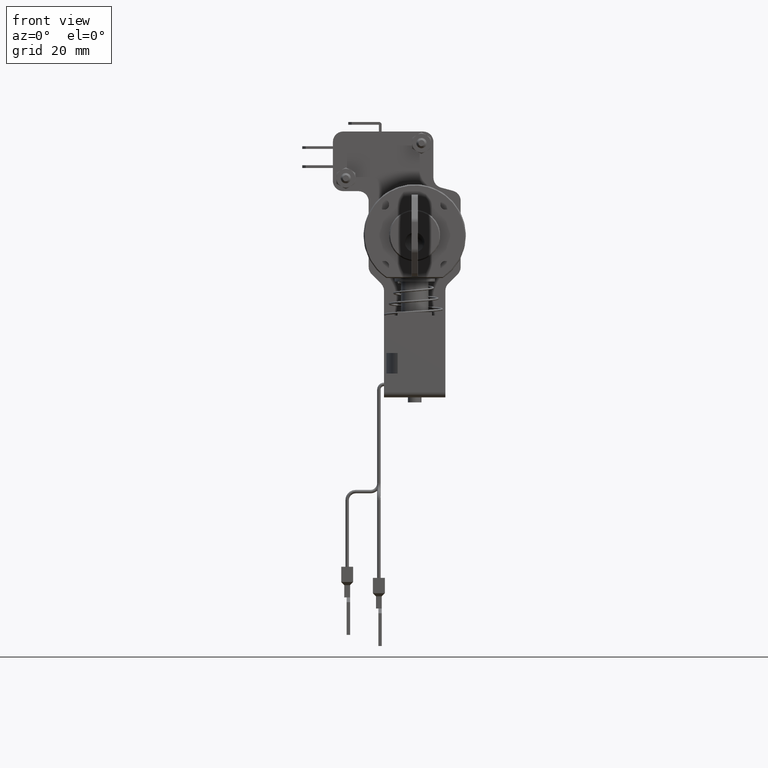
[diagram: clean part render]
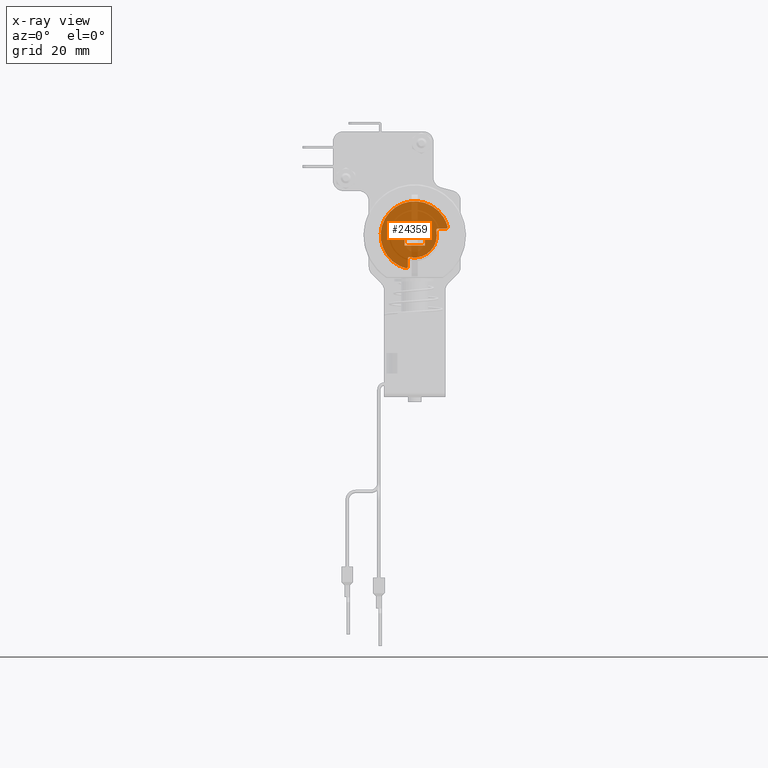
[diagram: x-ray — body ghosted, one internal face saturated and labeled with its STEP entity id]
A machine part, front view, then the same camera in x-ray: the body is ghosted and one INTERNAL B-rep face — a face not visible from any outside direction — is saturated and labeled: STEP entity #24359.
In plain terms, the highlighted face is a freeform B-spline surface patch.
Its self-contained STEP definition (entity closure, byte-faithful):
#24204=CARTESIAN_POINT('',(30.500000000000000,-10.646666672671440,10.968855094222990));
#24205=CARTESIAN_POINT('',(30.500000000000000,10.968855039149719,10.968855094222990));
#24206=CARTESIAN_POINT('',(30.500000000000000,-10.646666672671440,-10.646667346798530));
#24207=CARTESIAN_POINT('',(30.500000000000000,10.968855039149719,-10.646667346798530));
#24208=B_SPLINE_SURFACE_WITH_KNOTS('',1,1,((#24204,#24206),(#24205,#24207)),.UNSPECIFIED.,.F.,.F.,.U.,(2,2),(2,2),(0.0,21.615521711821160),(0.0,21.615522441021518),.UNSPECIFIED.);
#24209=CARTESIAN_POINT('',(30.500000000000000,-9.647527792194982,2.631578898461045));
#24210=VERTEX_POINT('',#24209);
#24211=CARTESIAN_POINT('',(30.500000000000000,-9.165151000000000,2.0));
#24212=VERTEX_POINT('',#24211);
#24213=CARTESIAN_POINT('',(30.500000000000000,-9.647527792194982,2.631578898461045));
#24214=CARTESIAN_POINT('',(30.500000000000007,-9.712598807194073,2.393022899500708));
#24215=CARTESIAN_POINT('',(30.500000000000000,-9.562510660593986,2.196511449750354));
#24216=CARTESIAN_POINT('',(30.500000000000007,-9.412422513993899,2.000000000000000));
#24217=CARTESIAN_POINT('',(30.500000000000000,-9.165151000000000,2.0));
#24225=(BOUNDED_CURVE()B_SPLINE_CURVE(2,(#24213,#24214,#24215,#24216,#24217),.UNSPECIFIED.,.F.,.U.)B_SPLINE_CURVE_WITH_KNOTS((3,2,3),(0.0,0.500000000000000,1.0),.UNSPECIFIED.)CURVE()GEOMETRIC_REPRESENTATION_ITEM()RATIONAL_B_SPLINE_CURVE((1.0,0.896375228489524,1.0,0.896375228489524,1.0))REPRESENTATION_ITEM(''));
#24226=EDGE_CURVE('',#24210,#24212,#24225,.T.);
#24227=ORIENTED_EDGE('',*,*,#24226,.F.);
#24228=CARTESIAN_POINT('',(30.500000000000000,2.631578944923050,-9.647528389609670));
#24229=VERTEX_POINT('',#24228);
#24230=CARTESIAN_POINT('',(30.500000000000000,2.631578944923050,-9.647528389609670));
#24231=CARTESIAN_POINT('',(30.499999999999996,10.702215867329622,-7.446081218348587));
#24232=CARTESIAN_POINT('',(30.500000000000000,9.960630033237456,0.886481438591915));
#24233=CARTESIAN_POINT('',(30.499999999999996,9.219044199145287,9.219044095532416));
#24234=CARTESIAN_POINT('',(30.500000000000000,0.886481550539475,9.960630023274288));
#24235=CARTESIAN_POINT('',(30.499999999999996,-7.446081098066332,10.702215951016155));
#24236=CARTESIAN_POINT('',(30.500000000000000,-9.647527792194980,2.631578898461048));
#24244=(BOUNDED_CURVE()B_SPLINE_CURVE(2,(#24230,#24231,#24232,#24233,#24234,#24235,#24236),.UNSPECIFIED.,.F.,.U.)B_SPLINE_CURVE_WITH_KNOTS((3,2,2,3),(0.0,0.333333333333333,0.666666666666667,1.0),.UNSPECIFIED.)CURVE()GEOMETRIC_REPRESENTATION_ITEM()RATIONAL_B_SPLINE_CURVE((1.0,0.767006611407387,1.0,0.767006611407387,1.0,0.767006611407387,1.0))REPRESENTATION_ITEM(''));
#24245=EDGE_CURVE('',#24229,#24210,#24244,.T.);
#24246=ORIENTED_EDGE('',*,*,#24245,.F.);
#24247=CARTESIAN_POINT('',(30.500000000000000,2.0,-9.165151999999999));
#24248=VERTEX_POINT('',#24247);
#24249=CARTESIAN_POINT('',(30.500000000000000,2.0,-9.165151999999999));
#24250=CARTESIAN_POINT('',(30.500000000000000,2.000000000000000,-9.412423560904257));
#24251=CARTESIAN_POINT('',(30.500000000000000,2.196511509659374,-9.562511706350263));
#24252=CARTESIAN_POINT('',(30.500000000000000,2.393023019318747,-9.712599851796270));
#24253=CARTESIAN_POINT('',(30.500000000000000,2.631578944923050,-9.647528389609670));
#24261=(BOUNDED_CURVE()B_SPLINE_CURVE(2,(#24249,#24250,#24251,#24252,#24253),.UNSPECIFIED.,.F.,.U.)B_SPLINE_CURVE_WITH_KNOTS((3,2,3),(0.0,0.500000000000000,1.0),.UNSPECIFIED.)CURVE()GEOMETRIC_REPRESENTATION_ITEM()RATIONAL_B_SPLINE_CURVE((1.0,0.896375195072145,1.0,0.896375195072145,1.0))REPRESENTATION_ITEM(''));
#24262=EDGE_CURVE('',#24248,#24229,#24261,.T.);
#24263=ORIENTED_EDGE('',*,*,#24262,.F.);
#24264=CARTESIAN_POINT('',(30.500000000000000,2.0,-6.837397165588670));
#24265=VERTEX_POINT('',#24264);
#24266=CARTESIAN_POINT('',(30.500000000000000,2.0,-6.837397165588670));
#24267=CARTESIAN_POINT('',(30.500000000000000,2.0,-9.165151999999999));
#24268=QUASI_UNIFORM_CURVE('',1,(#24266,#24267),.UNSPECIFIED.,.F.,.U.);
#24269=EDGE_CURVE('',#24265,#24248,#24268,.T.);
#24270=ORIENTED_EDGE('',*,*,#24269,.F.);
#24271=CARTESIAN_POINT('',(30.500000000000000,1.392857142857142,-6.349011653760910));
#24272=VERTEX_POINT('',#24271);
#24273=CARTESIAN_POINT('',(30.500000000000000,2.0,-6.837397165588670));
#24274=CARTESIAN_POINT('',(30.499999999999996,2.000000000000000,-6.597908050938844));
#24275=CARTESIAN_POINT('',(30.500000000000000,1.813391585264004,-6.447800304351679));
#24276=CARTESIAN_POINT('',(30.499999999999996,1.626783170528007,-6.297692557764516));
#24277=CARTESIAN_POINT('',(30.500000000000000,1.392857142857142,-6.349011653760909));
#24285=(BOUNDED_CURVE()B_SPLINE_CURVE(2,(#24273,#24274,#24275,#24276,#24277),.UNSPECIFIED.,.F.,.U.)B_SPLINE_CURVE_WITH_KNOTS((3,2,3),(0.0,0.500000000000000,1.0),.UNSPECIFIED.)CURVE()GEOMETRIC_REPRESENTATION_ITEM()RATIONAL_B_SPLINE_CURVE((1.0,0.901882245786003,1.0,0.901882245786003,1.0))REPRESENTATION_ITEM(''));
#24286=EDGE_CURVE('',#24265,#24272,#24285,.T.);
#24287=ORIENTED_EDGE('',*,*,#24286,.T.);
#24288=CARTESIAN_POINT('',(30.500000000000000,-6.349011653760910,1.392857142857144));
#24289=VERTEX_POINT('',#24288);
#24290=CARTESIAN_POINT('',(30.500000000000000,-6.349011653760909,1.392857142857144));
#24291=CARTESIAN_POINT('',(30.499999999999996,-7.111162039616178,-2.081226115808939));
#24292=CARTESIAN_POINT('',(30.500000000000000,-4.596194077712559,-4.596194077712558));
#24293=CARTESIAN_POINT('',(30.499999999999996,-2.081226115808942,-7.111162039616177));
#24294=CARTESIAN_POINT('',(30.500000000000000,1.392857142857140,-6.349011653760910));
#24302=(BOUNDED_CURVE()B_SPLINE_CURVE(2,(#24290,#24291,#24292,#24293,#24294),.UNSPECIFIED.,.F.,.U.)B_SPLINE_CURVE_WITH_KNOTS((3,2,3),(0.0,0.500000000000000,1.0),.UNSPECIFIED.)CURVE()GEOMETRIC_REPRESENTATION_ITEM()RATIONAL_B_SPLINE_CURVE((1.0,0.877256670767033,1.0,0.877256670767033,1.0))REPRESENTATION_ITEM(''));
#24303=EDGE_CURVE('',#24289,#24272,#24302,.T.);
#24304=ORIENTED_EDGE('',*,*,#24303,.F.);
#24305=CARTESIAN_POINT('',(30.500000000000000,-6.837397165588670,2.0));
#24306=VERTEX_POINT('',#24305);
#24307=CARTESIAN_POINT('',(30.500000000000000,-6.349011653760908,1.392857142857143));
#24308=CARTESIAN_POINT('',(30.499999999999996,-6.297692557764517,1.626783170528009));
#24309=CARTESIAN_POINT('',(30.500000000000000,-6.447800304351680,1.813391585264005));
#24310=CARTESIAN_POINT('',(30.499999999999996,-6.597908050938845,2.000000000000000));
#24311=CARTESIAN_POINT('',(30.500000000000000,-6.837397165588670,2.0));
#24319=(BOUNDED_CURVE()B_SPLINE_CURVE(2,(#24307,#24308,#24309,#24310,#24311),.UNSPECIFIED.,.F.,.U.)B_SPLINE_CURVE_WITH_KNOTS((3,2,3),(0.0,0.500000000000000,1.0),.UNSPECIFIED.)CURVE()GEOMETRIC_REPRESENTATION_ITEM()RATIONAL_B_SPLINE_CURVE((1.0,0.901882245786003,1.0,0.901882245786003,1.0))REPRESENTATION_ITEM(''));
#24320=EDGE_CURVE('',#24289,#24306,#24319,.T.);
#24321=ORIENTED_EDGE('',*,*,#24320,.T.);
#24322=CARTESIAN_POINT('',(30.500000000000000,-9.165151000000000,2.0));
#24323=CARTESIAN_POINT('',(30.500000000000000,-6.837397165588670,2.0));
#24324=QUASI_UNIFORM_CURVE('',1,(#24322,#24323),.UNSPECIFIED.,.F.,.U.);
#24325=EDGE_CURVE('',#24212,#24306,#24324,.T.);
#24326=ORIENTED_EDGE('',*,*,#24325,.F.);
#24327=EDGE_LOOP('',(#24227,#24246,#24263,#24270,#24287,#24304,#24321,#24326));
#24328=FACE_OUTER_BOUND('',#24327,.T.);
#24329=CARTESIAN_POINT('',(30.500000000000000,3.0,-3.0));
#24330=VERTEX_POINT('',#24329);
#24331=CARTESIAN_POINT('',(30.500000000000000,3.0,3.0));
#24332=VERTEX_POINT('',#24331);
#24333=CARTESIAN_POINT('',(30.500000000000000,3.0,-3.0));
#24334=CARTESIAN_POINT('',(30.500000000000000,3.0,3.0));
#24335=QUASI_UNIFORM_CURVE('',1,(#24333,#24334),.UNSPECIFIED.,.F.,.U.);
#24336=EDGE_CURVE('',#24330,#24332,#24335,.T.);
#24337=ORIENTED_EDGE('',*,*,#24336,.T.);
#24338=CARTESIAN_POINT('',(30.500000000000000,-3.0,3.0));
#24339=VERTEX_POINT('',#24338);
#24340=CARTESIAN_POINT('',(30.500000000000000,3.0,3.0));
#24341=CARTESIAN_POINT('',(30.500000000000000,-3.0,3.0));
#24342=QUASI_UNIFORM_CURVE('',1,(#24340,#24341),.UNSPECIFIED.,.F.,.U.);
#24343=EDGE_CURVE('',#24332,#24339,#24342,.T.);
#24344=ORIENTED_EDGE('',*,*,#24343,.T.);
#24345=CARTESIAN_POINT('',(30.500000000000000,-3.0,-3.0));
#24346=VERTEX_POINT('',#24345);
#24347=CARTESIAN_POINT('',(30.500000000000000,-3.0,3.0));
#24348=CARTESIAN_POINT('',(30.500000000000000,-3.0,-3.0));
#24349=QUASI_UNIFORM_CURVE('',1,(#24347,#24348),.UNSPECIFIED.,.F.,.U.);
#24350=EDGE_CURVE('',#24339,#24346,#24349,.T.);
#24351=ORIENTED_EDGE('',*,*,#24350,.T.);
#24352=CARTESIAN_POINT('',(30.500000000000000,-3.0,-3.0));
#24353=CARTESIAN_POINT('',(30.500000000000000,3.0,-3.0));
#24354=QUASI_UNIFORM_CURVE('',1,(#24352,#24353),.UNSPECIFIED.,.F.,.U.);
#24355=EDGE_CURVE('',#24346,#24330,#24354,.T.);
#24356=ORIENTED_EDGE('',*,*,#24355,.T.);
#24357=EDGE_LOOP('',(#24337,#24344,#24351,#24356));
#24358=FACE_BOUND('',#24357,.T.);
#24359=ADVANCED_FACE('',(#24328,#24358),#24208,.T.);